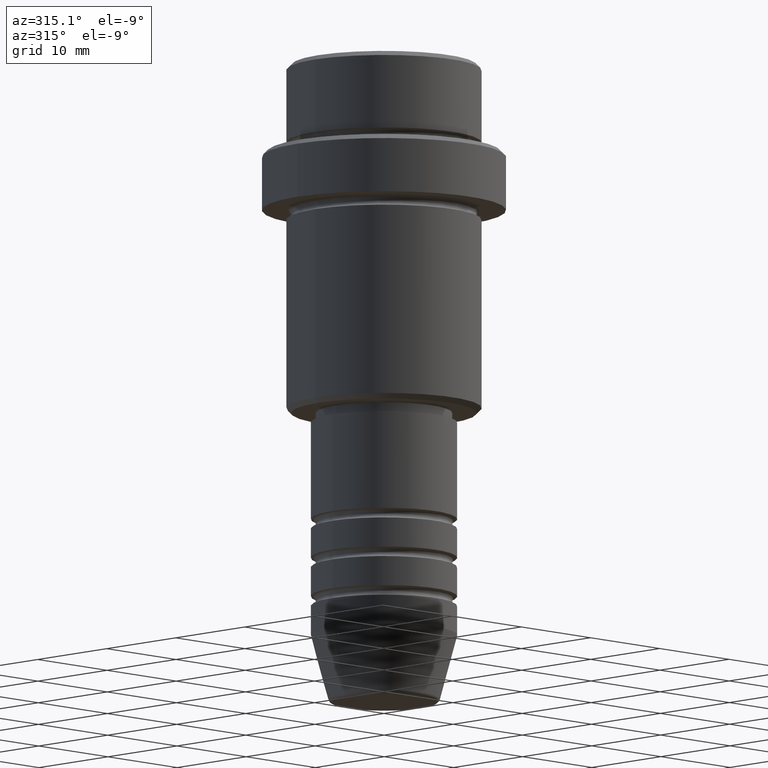
[diagram: clean part render]
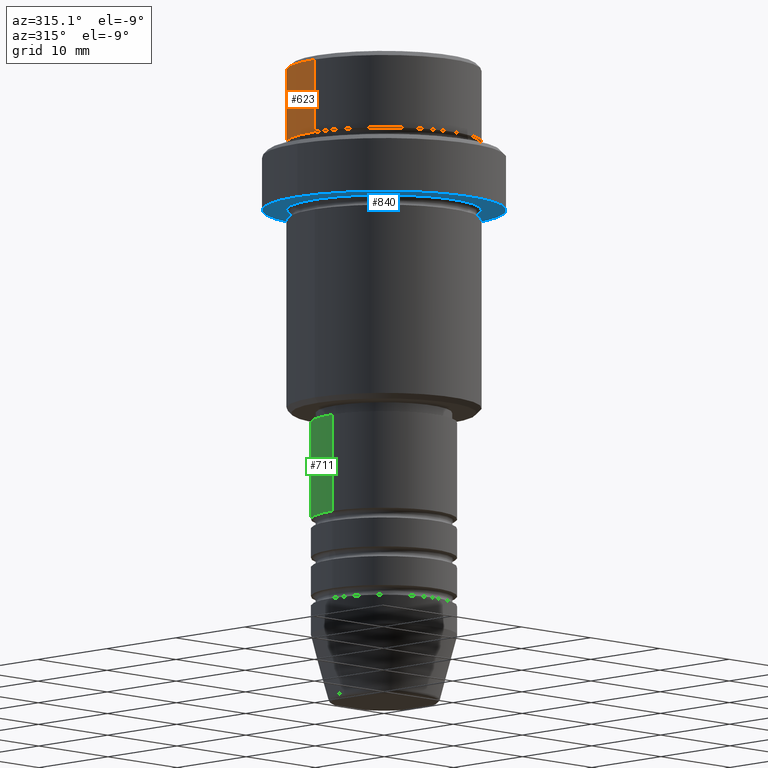
[diagram: same view with three faces highlighted in distinct colors, each labeled with its STEP entity id]
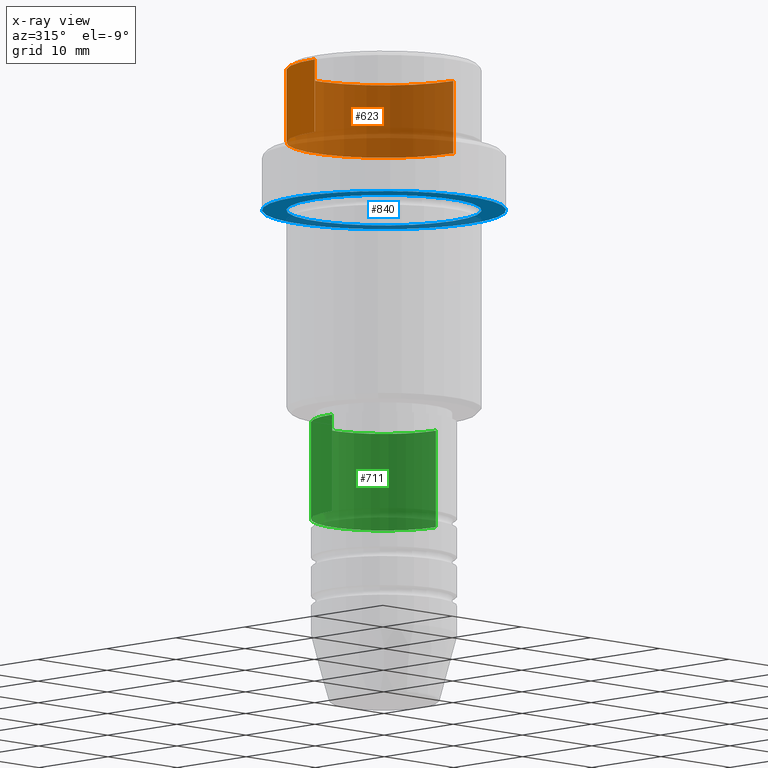
[diagram: x-ray of the same camera — body ghosted, the three highlighted faces saturated]
A machine part, auxiliary view with three faces highlighted in distinct colors.
The next image is the same camera in x-ray (body ghosted, the three faces saturated) — at least one of them is partly hidden behind the body in this view.
Their STEP definitions:

[orange] entity #623 — the highlighted cylindrical surface (partial cylindrical patch) has radius 10 mm, axis along (-0, -0, 1).
#49 = AXIS2_PLACEMENT_3D ( 'NONE', #625, #1069, #95 ) ;
#95 = DIRECTION ( 'NONE',  ( 1.000000000000000000, 0.000000000000000000, 0.000000000000000000 ) ) ;
#164 = CARTESIAN_POINT ( 'NONE',  ( 9.999999999999998224, 0.000000000000000000, 0.000000000000000000 ) ) ;
#176 = CARTESIAN_POINT ( 'NONE',  ( 0.000000000000000000, 0.000000000000000000, 0.000000000000000000 ) ) ;
#291 = DIRECTION ( 'NONE',  ( -0.000000000000000000, -0.000000000000000000, 1.000000000000000000 ) ) ;
#304 = ORIENTED_EDGE ( 'NONE', *, *, #675, .T. ) ;
#403 = CARTESIAN_POINT ( 'NONE',  ( -9.999999999999998224, 1.224646799147353059E-15, 0.000000000000000000 ) ) ;
#419 = CYLINDRICAL_SURFACE ( 'NONE', #1032, 9.999999999999998224 ) ;
#427 = DIRECTION ( 'NONE',  ( 1.000000000000000000, 0.000000000000000000, 0.000000000000000000 ) ) ;
#509 = DIRECTION ( 'NONE',  ( -0.000000000000000000, -0.000000000000000000, 1.000000000000000000 ) ) ;
#562 = CARTESIAN_POINT ( 'NONE',  ( 9.999999999999998224, 0.000000000000000000, -0.4999999999999970024 ) ) ;
#566 = CIRCLE ( 'NONE', #1104, 9.999999999999998224 ) ;
#612 = EDGE_CURVE ( 'NONE', #949, #809, #566, .T. ) ;
#623 = ADVANCED_FACE ( 'NONE', ( #635 ), #419, .T. ) ;
#625 = CARTESIAN_POINT ( 'NONE',  ( 0.000000000000000000, 0.000000000000000000, -7.999999999999998224 ) ) ;
#635 = FACE_OUTER_BOUND ( 'NONE', #724, .T. ) ;
#666 = CIRCLE ( 'NONE', #49, 9.999999999999998224 ) ;
#675 = EDGE_CURVE ( 'NONE', #926, #949, #1286, .T. ) ;
#713 = VECTOR ( 'NONE', #1361, 1000.000000000000000 ) ;
#724 = EDGE_LOOP ( 'NONE', ( #1351, #304, #768, #1354 ) ) ;
#732 = DIRECTION ( 'NONE',  ( 1.000000000000000000, 0.000000000000000000, 0.000000000000000000 ) ) ;
#735 = VECTOR ( 'NONE', #291, 1000.000000000000000 ) ;
#768 = ORIENTED_EDGE ( 'NONE', *, *, #612, .T. ) ;
#789 = LINE ( 'NONE', #164, #713 ) ;
#809 = VERTEX_POINT ( 'NONE', #562 ) ;
#810 = CARTESIAN_POINT ( 'NONE',  ( 9.999999999999998224, 0.000000000000000000, -7.999999999999998224 ) ) ;
#926 = VERTEX_POINT ( 'NONE', #933 ) ;
#933 = CARTESIAN_POINT ( 'NONE',  ( -9.999999999999998224, 1.224646799147353059E-15, -7.999999999999998224 ) ) ;
#949 = VERTEX_POINT ( 'NONE', #1334 ) ;
#1032 = AXIS2_PLACEMENT_3D ( 'NONE', #176, #509, #427 ) ;
#1067 = EDGE_CURVE ( 'NONE', #1395, #926, #666, .T. ) ;
#1069 = DIRECTION ( 'NONE',  ( -0.000000000000000000, -0.000000000000000000, 1.000000000000000000 ) ) ;
#1083 = EDGE_CURVE ( 'NONE', #1395, #809, #789, .T. ) ;
#1087 = CARTESIAN_POINT ( 'NONE',  ( 0.000000000000000000, 0.000000000000000000, -0.4999999999999970024 ) ) ;
#1104 = AXIS2_PLACEMENT_3D ( 'NONE', #1087, #1159, #732 ) ;
#1159 = DIRECTION ( 'NONE',  ( 0.000000000000000000, 0.000000000000000000, -1.000000000000000000 ) ) ;
#1286 = LINE ( 'NONE', #403, #735 ) ;
#1334 = CARTESIAN_POINT ( 'NONE',  ( -9.999999999999998224, 1.224646799147353059E-15, -0.4999999999999970024 ) ) ;
#1351 = ORIENTED_EDGE ( 'NONE', *, *, #1067, .T. ) ;
#1354 = ORIENTED_EDGE ( 'NONE', *, *, #1083, .F. ) ;
#1361 = DIRECTION ( 'NONE',  ( -0.000000000000000000, -0.000000000000000000, 1.000000000000000000 ) ) ;
#1395 = VERTEX_POINT ( 'NONE', #810 ) ;

[blue] entity #840 — the highlighted planar face has unit normal (0, 0, -1).
#78 = CIRCLE ( 'NONE', #567, 9.999999999999992895 ) ;
#109 = CARTESIAN_POINT ( 'NONE',  ( -12.50000000000000000, 1.530808498934191521E-15, -15.00000000000000000 ) ) ;
#122 = CARTESIAN_POINT ( 'NONE',  ( 12.50000000000000000, 0.000000000000000000, -15.00000000000000000 ) ) ;
#190 = CARTESIAN_POINT ( 'NONE',  ( 0.000000000000000000, 12.50000000000000000, -15.00000000000000000 ) ) ;
#214 = DIRECTION ( 'NONE',  ( 1.000000000000000000, 0.000000000000000000, 0.000000000000000000 ) ) ;
#219 = DIRECTION ( 'NONE',  ( -0.000000000000000000, -0.000000000000000000, 1.000000000000000000 ) ) ;
#225 = CARTESIAN_POINT ( 'NONE',  ( 0.000000000000000000, 0.000000000000000000, -15.00000000000000000 ) ) ;
#233 = CARTESIAN_POINT ( 'NONE',  ( 0.000000000000000000, 0.000000000000000000, -15.00000000000000000 ) ) ;
#235 = DIRECTION ( 'NONE',  ( -1.000000000000000000, 0.000000000000000000, 0.000000000000000000 ) ) ;
#248 = DIRECTION ( 'NONE',  ( -0.000000000000000000, -0.000000000000000000, 1.000000000000000000 ) ) ;
#261 = ORIENTED_EDGE ( 'NONE', *, *, #1113, .T. ) ;
#275 = CIRCLE ( 'NONE', #1062, 12.50000000000000000 ) ;
#288 = ORIENTED_EDGE ( 'NONE', *, *, #1225, .F. ) ;
#343 = AXIS2_PLACEMENT_3D ( 'NONE', #1330, #1219, #235 ) ;
#345 = AXIS2_PLACEMENT_3D ( 'NONE', #190, #1259, #948 ) ;
#376 = DIRECTION ( 'NONE',  ( 1.000000000000000000, 0.000000000000000000, 0.000000000000000000 ) ) ;
#473 = ORIENTED_EDGE ( 'NONE', *, *, #572, .T. ) ;
#506 = VERTEX_POINT ( 'NONE', #122 ) ;
#567 = AXIS2_PLACEMENT_3D ( 'NONE', #233, #219, #659 ) ;
#572 = EDGE_CURVE ( 'NONE', #859, #824, #1339, .T. ) ;
#659 = DIRECTION ( 'NONE',  ( -1.000000000000000000, 0.000000000000000000, 0.000000000000000000 ) ) ;
#823 = EDGE_LOOP ( 'NONE', ( #1177, #288 ) ) ;
#824 = VERTEX_POINT ( 'NONE', #1119 ) ;
#840 = ADVANCED_FACE ( 'NONE', ( #1048, #1168 ), #1362, .T. ) ;
#859 = VERTEX_POINT ( 'NONE', #1376 ) ;
#907 = CARTESIAN_POINT ( 'NONE',  ( 0.000000000000000000, 0.000000000000000000, -15.00000000000000000 ) ) ;
#948 = DIRECTION ( 'NONE',  ( -1.000000000000000000, 0.000000000000000000, -0.000000000000000000 ) ) ;
#1048 = FACE_BOUND ( 'NONE', #1310, .T. ) ;
#1062 = AXIS2_PLACEMENT_3D ( 'NONE', #907, #248, #376 ) ;
#1113 = EDGE_CURVE ( 'NONE', #824, #859, #78, .T. ) ;
#1119 = CARTESIAN_POINT ( 'NONE',  ( -9.999999999999992895, 0.000000000000000000, -15.00000000000000000 ) ) ;
#1152 = VERTEX_POINT ( 'NONE', #109 ) ;
#1168 = FACE_OUTER_BOUND ( 'NONE', #823, .T. ) ;
#1177 = ORIENTED_EDGE ( 'NONE', *, *, #1359, .F. ) ;
#1195 = DIRECTION ( 'NONE',  ( -0.000000000000000000, -0.000000000000000000, 1.000000000000000000 ) ) ;
#1219 = DIRECTION ( 'NONE',  ( -0.000000000000000000, -0.000000000000000000, 1.000000000000000000 ) ) ;
#1225 = EDGE_CURVE ( 'NONE', #1152, #506, #1401, .T. ) ;
#1259 = DIRECTION ( 'NONE',  ( 0.000000000000000000, 0.000000000000000000, -1.000000000000000000 ) ) ;
#1310 = EDGE_LOOP ( 'NONE', ( #261, #473 ) ) ;
#1330 = CARTESIAN_POINT ( 'NONE',  ( 0.000000000000000000, 0.000000000000000000, -15.00000000000000000 ) ) ;
#1339 = CIRCLE ( 'NONE', #343, 9.999999999999992895 ) ;
#1348 = AXIS2_PLACEMENT_3D ( 'NONE', #225, #1195, #214 ) ;
#1359 = EDGE_CURVE ( 'NONE', #506, #1152, #275, .T. ) ;
#1362 = PLANE ( 'NONE',  #345 ) ;
#1376 = CARTESIAN_POINT ( 'NONE',  ( 9.999999999999992895, 1.224646799147352468E-15, -15.00000000000000000 ) ) ;
#1401 = CIRCLE ( 'NONE', #1348, 12.50000000000000000 ) ;

[green] entity #711 — the highlighted cylindrical surface (partial cylindrical patch) has radius 7.5 mm, axis along (-0, -0, 1).
#37 = ORIENTED_EDGE ( 'NONE', *, *, #1337, .T. ) ;
#90 = CYLINDRICAL_SURFACE ( 'NONE', #116, 7.500000000000000000 ) ;
#116 = AXIS2_PLACEMENT_3D ( 'NONE', #748, #778, #228 ) ;
#125 = DIRECTION ( 'NONE',  ( -0.000000000000000000, -0.000000000000000000, 1.000000000000000000 ) ) ;
#209 = DIRECTION ( 'NONE',  ( -0.000000000000000000, -0.000000000000000000, 1.000000000000000000 ) ) ;
#228 = DIRECTION ( 'NONE',  ( 1.000000000000000000, 0.000000000000000000, 0.000000000000000000 ) ) ;
#236 = CARTESIAN_POINT ( 'NONE',  ( 7.500000000000000000, 0.000000000000000000, -46.99999999999987921 ) ) ;
#247 = ORIENTED_EDGE ( 'NONE', *, *, #500, .F. ) ;
#290 = ORIENTED_EDGE ( 'NONE', *, *, #1024, .T. ) ;
#315 = CARTESIAN_POINT ( 'NONE',  ( 0.000000000000000000, 0.000000000000000000, -46.99999999999987921 ) ) ;
#354 = DIRECTION ( 'NONE',  ( -0.000000000000000000, -0.000000000000000000, 1.000000000000000000 ) ) ;
#500 = EDGE_CURVE ( 'NONE', #1283, #930, #1209, .T. ) ;
#551 = VECTOR ( 'NONE', #354, 1000.000000000000000 ) ;
#589 = AXIS2_PLACEMENT_3D ( 'NONE', #1076, #866, #1291 ) ;
#602 = VERTEX_POINT ( 'NONE', #753 ) ;
#627 = FACE_OUTER_BOUND ( 'NONE', #1416, .T. ) ;
#649 = DIRECTION ( 'NONE',  ( 1.000000000000000000, 0.000000000000000000, 0.000000000000000000 ) ) ;
#684 = CARTESIAN_POINT ( 'NONE',  ( -7.500000000000000000, 9.184850993605147944E-16, 0.000000000000000000 ) ) ;
#686 = AXIS2_PLACEMENT_3D ( 'NONE', #315, #209, #649 ) ;
#704 = ORIENTED_EDGE ( 'NONE', *, *, #756, .F. ) ;
#711 = ADVANCED_FACE ( 'NONE', ( #627 ), #90, .T. ) ;
#748 = CARTESIAN_POINT ( 'NONE',  ( 0.000000000000000000, 0.000000000000000000, 0.000000000000000000 ) ) ;
#753 = CARTESIAN_POINT ( 'NONE',  ( -7.500000000000000000, 9.184850993605147944E-16, -37.00000000000000000 ) ) ;
#756 = EDGE_CURVE ( 'NONE', #930, #602, #759, .T. ) ;
#759 = CIRCLE ( 'NONE', #589, 7.500000000000000000 ) ;
#776 = CARTESIAN_POINT ( 'NONE',  ( 7.500000000000000000, 0.000000000000000000, 0.000000000000000000 ) ) ;
#778 = DIRECTION ( 'NONE',  ( -0.000000000000000000, -0.000000000000000000, 1.000000000000000000 ) ) ;
#807 = CARTESIAN_POINT ( 'NONE',  ( 7.500000000000000000, 0.000000000000000000, -37.00000000000000000 ) ) ;
#866 = DIRECTION ( 'NONE',  ( -0.000000000000000000, -0.000000000000000000, 1.000000000000000000 ) ) ;
#879 = VECTOR ( 'NONE', #125, 1000.000000000000000 ) ;
#919 = CIRCLE ( 'NONE', #686, 7.500000000000000000 ) ;
#930 = VERTEX_POINT ( 'NONE', #807 ) ;
#936 = CARTESIAN_POINT ( 'NONE',  ( -7.500000000000000000, 9.184850993605147944E-16, -46.99999999999987921 ) ) ;
#1024 = EDGE_CURVE ( 'NONE', #1283, #1262, #919, .T. ) ;
#1076 = CARTESIAN_POINT ( 'NONE',  ( 0.000000000000000000, 0.000000000000000000, -37.00000000000000000 ) ) ;
#1209 = LINE ( 'NONE', #776, #879 ) ;
#1229 = LINE ( 'NONE', #684, #551 ) ;
#1262 = VERTEX_POINT ( 'NONE', #936 ) ;
#1283 = VERTEX_POINT ( 'NONE', #236 ) ;
#1291 = DIRECTION ( 'NONE',  ( 1.000000000000000000, 0.000000000000000000, 0.000000000000000000 ) ) ;
#1337 = EDGE_CURVE ( 'NONE', #1262, #602, #1229, .T. ) ;
#1416 = EDGE_LOOP ( 'NONE', ( #290, #37, #704, #247 ) ) ;